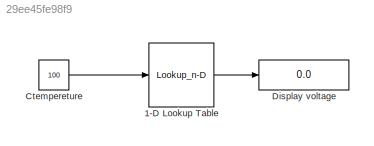
MODEL slx_29ee45fe98f9
KIND model
CONFIG AbsTol = auto
CONFIG EnableMultiTasking = off
CONFIG FixedStep = auto
CONFIG MaxStep = auto
CONFIG MinStep = auto
CONFIG RelTol = 1e-3
CONFIG SampleTimeConstraint = Unconstrained
CONFIG SolverName = VariableStepAuto
CONFIG StartTime = 0.0
CONFIG StopTime = 10.0
BLOCK [Lookup_n-D] 1-D Lookup Table
  BreakpointsForDimension1 = [0,20,40,60,80]
  InputPortMap = u0
  InternalRulePriority = Speed
  NumberOfTableDimensions = 1
  RndMeth = Simplest
  Table = [1.0,2.5,3.7,4.9,6.2]
BLOCK [Constant] Ctempereture 
  Value = 100
BLOCK [Display] Display voltage
  Decimation = 1
LINE 1-D Lookup Table:1 -> Display voltage:1
LINE Ctempereture :1 -> 1-D Lookup Table:1
